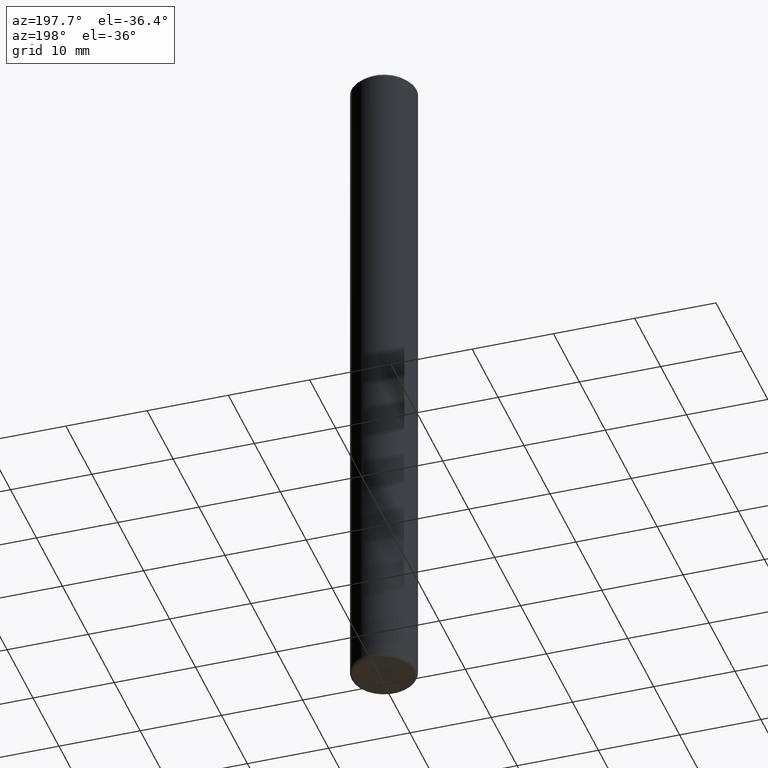
[diagram: clean part render]
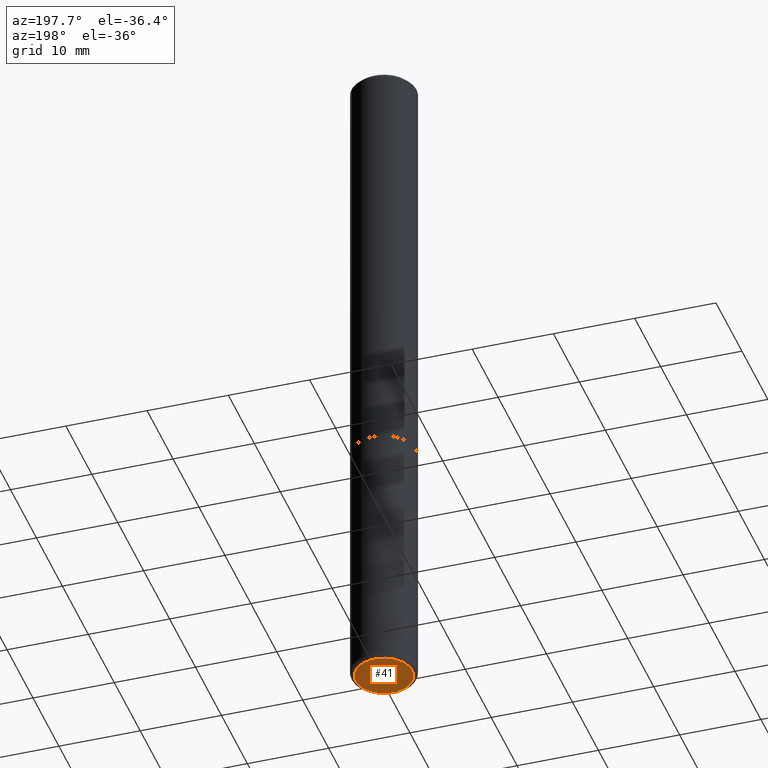
[diagram: same view with one face highlighted and labeled with its STEP entity id]
A machine part, auxiliary view. The second image highlights one B-rep face of the part: STEP entity #41.
In plain terms, the highlighted planar face has unit normal (0, -0, -1).
Its self-contained STEP definition (entity closure, byte-faithful):
#20 = AXIS2_PLACEMENT_3D ( 'NONE', #47, #159, #51 ) ;
#40 = ORIENTED_EDGE ( 'NONE', *, *, #372, .F. ) ;
#41 = ADVANCED_FACE ( 'NONE', ( #369 ), #133, .T. ) ;
#47 = CARTESIAN_POINT ( 'NONE',  ( 8.183761359898559783E-29, -1.168424230043858645E-14, -3.346499999999999808 ) ) ;
#51 = DIRECTION ( 'NONE',  ( 1.000000000000000000, -6.982962677686265922E-15, 0.000000000000000000 ) ) ;
#91 = DIRECTION ( 'NONE',  ( -2.445468806185136597E-29, 3.491481338843145583E-15, 1.000000000000000000 ) ) ;
#93 = DIRECTION ( 'NONE',  ( 1.000000000000000000, -6.982962677686265922E-15, 0.000000000000000000 ) ) ;
#111 = DIRECTION ( 'NONE',  ( -1.000000000000000000, 6.982962677686265922E-15, -4.876176775795935793E-29 ) ) ;
#133 = PLANE ( 'NONE',  #255 ) ;
#135 = DIRECTION ( 'NONE',  ( 2.438088387897960049E-29, -3.491481338843145188E-15, -1.000000000000000000 ) ) ;
#159 = DIRECTION ( 'NONE',  ( -2.445468806185136597E-29, 3.491481338843145583E-15, 1.000000000000000000 ) ) ;
#217 = CIRCLE ( 'NONE', #269, 0.1378000000000000058 ) ;
#231 = EDGE_LOOP ( 'NONE', ( #414, #40 ) ) ;
#255 = AXIS2_PLACEMENT_3D ( 'NONE', #307, #135, #111 ) ;
#269 = AXIS2_PLACEMENT_3D ( 'NONE', #387, #91, #93 ) ;
#286 = EDGE_CURVE ( 'NONE', #289, #342, #379, .T. ) ;
#289 = VERTEX_POINT ( 'NONE', #298 ) ;
#298 = CARTESIAN_POINT ( 'NONE',  ( 0.1378000000000000058, -1.264649455742375392E-14, -3.346499999999999808 ) ) ;
#307 = CARTESIAN_POINT ( 'NONE',  ( 8.183761359898559783E-29, -1.168424230043858645E-14, -3.346499999999999808 ) ) ;
#323 = CARTESIAN_POINT ( 'NONE',  ( -0.1378000000000000058, -1.060073485990119567E-14, -3.346499999999999808 ) ) ;
#342 = VERTEX_POINT ( 'NONE', #323 ) ;
#369 = FACE_OUTER_BOUND ( 'NONE', #231, .T. ) ;
#372 = EDGE_CURVE ( 'NONE', #342, #289, #217, .T. ) ;
#379 = CIRCLE ( 'NONE', #20, 0.1378000000000000058 ) ;
#387 = CARTESIAN_POINT ( 'NONE',  ( 8.183761359898559783E-29, -1.168424230043858645E-14, -3.346499999999999808 ) ) ;
#414 = ORIENTED_EDGE ( 'NONE', *, *, #286, .F. ) ;